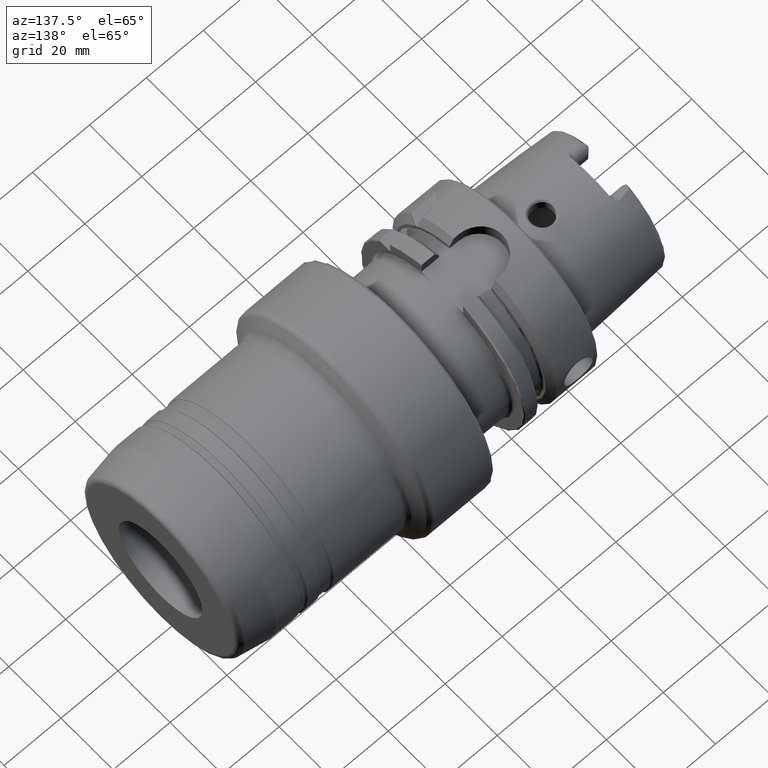
[diagram: clean part render]
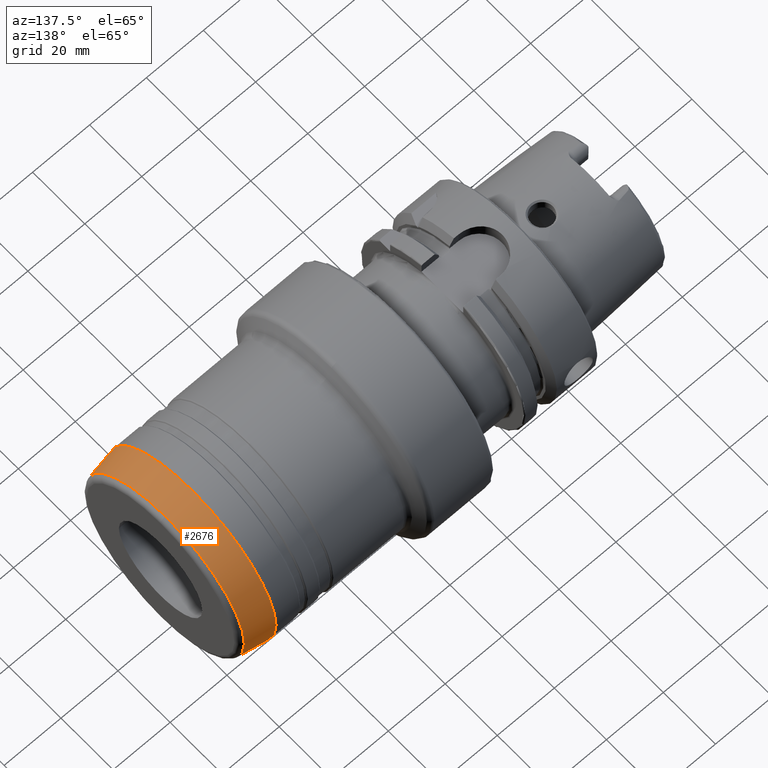
[diagram: same view with one face highlighted and labeled with its STEP entity id]
A machine part, auxiliary view. The second image highlights one B-rep face of the part: STEP entity #2676.
In plain terms, the highlighted conical surface has half-angle 10 deg.
Its self-contained STEP definition (entity closure, byte-faithful):
#162=CONICAL_SURFACE('',#2926,31.,0.174532925199432);
#197=LINE('',#4482,#318);
#318=VECTOR('',#3448,31.);
#486=FACE_OUTER_BOUND('',#629,.T.);
#629=EDGE_LOOP('',(#1941,#1942,#1943,#1944,#1945,#1946,#1947,#1948));
#838=CIRCLE('',#2922,31.9848077530122);
#839=CIRCLE('',#2923,31.9848077530122);
#841=CIRCLE('',#2925,31.9848077530122);
#842=CIRCLE('',#2927,30.2914162436699);
#843=CIRCLE('',#2928,30.2914162436699);
#844=CIRCLE('',#2929,30.2914162436699);
#1070=VERTEX_POINT('',#4469);
#1071=VERTEX_POINT('',#4470);
#1072=VERTEX_POINT('',#4472);
#1073=VERTEX_POINT('',#4477);
#1074=VERTEX_POINT('',#4478);
#1075=VERTEX_POINT('',#4480);
#1402=EDGE_CURVE('',#1070,#1071,#838,.T.);
#1403=EDGE_CURVE('',#1071,#1072,#839,.T.);
#1405=EDGE_CURVE('',#1072,#1070,#841,.T.);
#1406=EDGE_CURVE('',#1073,#1074,#842,.T.);
#1407=EDGE_CURVE('',#1075,#1073,#843,.T.);
#1408=EDGE_CURVE('',#1075,#1071,#197,.T.);
#1409=EDGE_CURVE('',#1074,#1075,#844,.T.);
#1941=ORIENTED_EDGE('',*,*,#1406,.F.);
#1942=ORIENTED_EDGE('',*,*,#1407,.F.);
#1943=ORIENTED_EDGE('',*,*,#1408,.T.);
#1944=ORIENTED_EDGE('',*,*,#1402,.F.);
#1945=ORIENTED_EDGE('',*,*,#1405,.F.);
#1946=ORIENTED_EDGE('',*,*,#1403,.F.);
#1947=ORIENTED_EDGE('',*,*,#1408,.F.);
#1948=ORIENTED_EDGE('',*,*,#1409,.F.);
#2676=ADVANCED_FACE('',(#486),#162,.T.);
#2922=AXIS2_PLACEMENT_3D('',#4471,#3434,#3435);
#2923=AXIS2_PLACEMENT_3D('',#4473,#3436,#3437);
#2925=AXIS2_PLACEMENT_3D('',#4475,#3440,#3441);
#2926=AXIS2_PLACEMENT_3D('',#4476,#3442,#3443);
#2927=AXIS2_PLACEMENT_3D('',#4479,#3444,#3445);
#2928=AXIS2_PLACEMENT_3D('',#4481,#3446,#3447);
#2929=AXIS2_PLACEMENT_3D('',#4483,#3449,#3450);
#3434=DIRECTION('center_axis',(-1.,0.,0.));
#3435=DIRECTION('ref_axis',(0.,-1.,3.06161699786838E-17));
#3436=DIRECTION('center_axis',(-1.,0.,0.));
#3437=DIRECTION('ref_axis',(0.,-1.,3.06161699786838E-17));
#3440=DIRECTION('center_axis',(-1.,0.,0.));
#3441=DIRECTION('ref_axis',(0.,-1.,3.06161699786838E-17));
#3442=DIRECTION('center_axis',(-1.,0.,0.));
#3443=DIRECTION('ref_axis',(0.,1.,0.));
#3444=DIRECTION('center_axis',(1.,0.,0.));
#3445=DIRECTION('ref_axis',(0.,-1.,3.06161699786839E-17));
#3446=DIRECTION('center_axis',(1.,0.,0.));
#3447=DIRECTION('ref_axis',(0.,-1.,3.06161699786839E-17));
#3448=DIRECTION('',(-0.984807753012208,-0.17364817766693,-2.12657684957576E-17));
#3449=DIRECTION('center_axis',(1.,0.,0.));
#3450=DIRECTION('ref_axis',(0.,-1.,3.06161699786839E-17));
#4469=CARTESIAN_POINT('',(113.743595874906,31.9848077530122,-9.79252310901746E-15));
#4470=CARTESIAN_POINT('',(113.743595874906,-31.9848077530122,-3.91700924360699E-15));
#4471=CARTESIAN_POINT('Origin',(113.743595874906,0.,-4.89626155450873E-15));
#4472=CARTESIAN_POINT('',(113.743595874906,-3.91700924360698E-15,31.9848077530122));
#4473=CARTESIAN_POINT('Origin',(113.743595874906,0.,-4.89626155450873E-15));
#4475=CARTESIAN_POINT('Origin',(113.743595874906,0.,-4.89626155450873E-15));
#4476=CARTESIAN_POINT('Origin',(119.328718180382,0.,0.));
#4477=CARTESIAN_POINT('',(123.347296355334,30.2914162436699,-1.85481429722252E-15));
#4478=CARTESIAN_POINT('',(123.347296355334,-3.70962859444504E-15,30.2914162436699));
#4479=CARTESIAN_POINT('Origin',(123.347296355334,0.,-4.6370357430563E-15));
#4480=CARTESIAN_POINT('',(123.347296355334,-30.2914162436699,-3.70962859444504E-15));
#4481=CARTESIAN_POINT('Origin',(123.347296355334,0.,-4.6370357430563E-15));
#4482=CARTESIAN_POINT('',(119.328718180382,-31.,-3.7964050773568E-15));
#4483=CARTESIAN_POINT('Origin',(123.347296355334,0.,-4.6370357430563E-15));